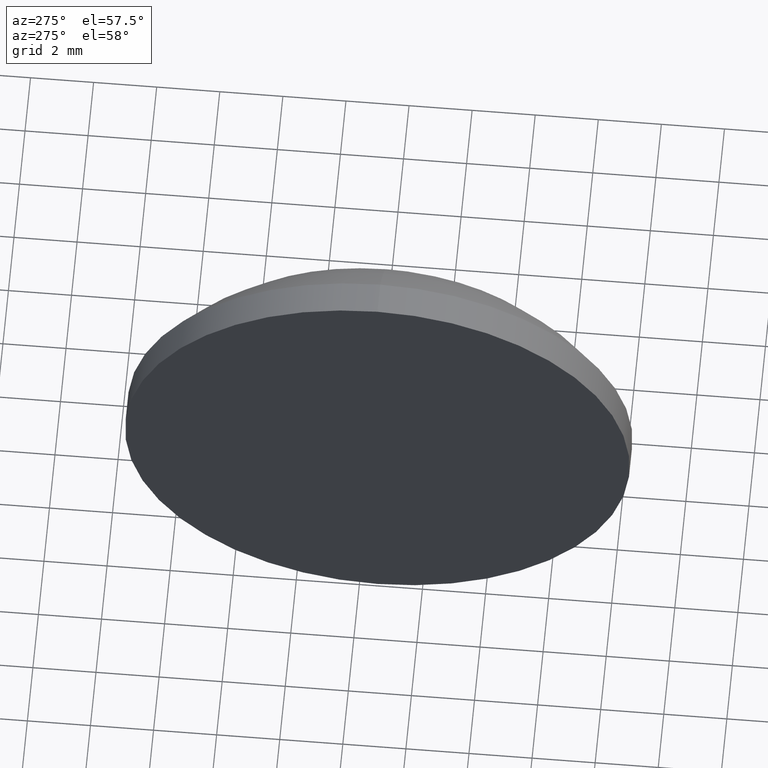
[diagram: clean part render]
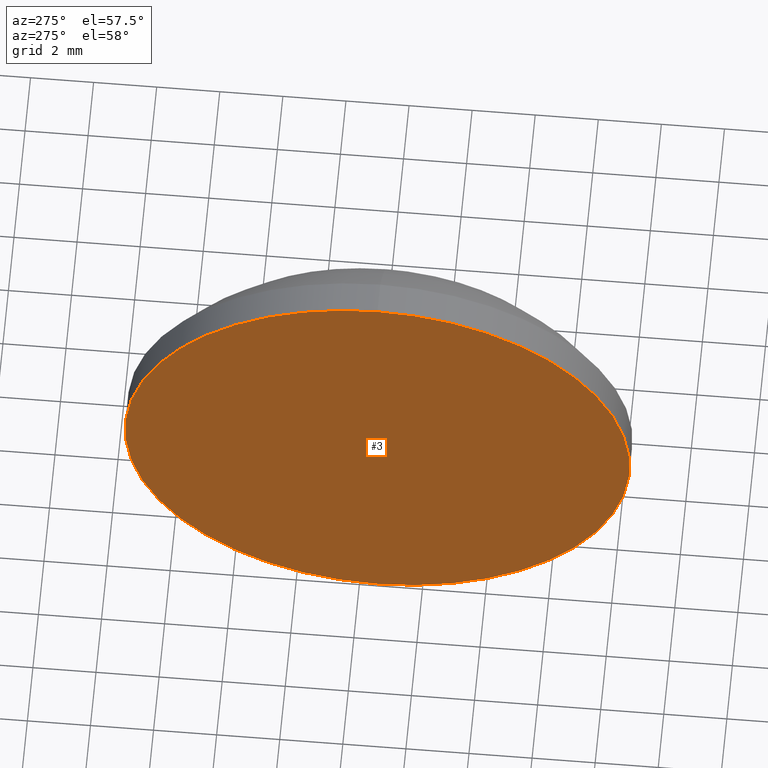
[diagram: same view with one face highlighted and labeled with its STEP entity id]
A machine part, auxiliary view. The second image highlights one B-rep face of the part: STEP entity #3.
In plain terms, the highlighted planar face has unit normal (1, 0, 0).
Its self-contained STEP definition (entity closure, byte-faithful):
#3 = ADVANCED_FACE ( 'NONE', ( #5 ), #85, .F. ) ;
#5 = FACE_OUTER_BOUND ( 'NONE', #80, .T. ) ;
#9 = CARTESIAN_POINT ( 'NONE',  ( 449.8505502683110500, 135.4163009679578000, 0.0000000000000000000 ) ) ;
#26 = ORIENTED_EDGE ( 'NONE', *, *, #159, .T. ) ;
#52 = DIRECTION ( 'NONE',  ( -1.000000000000000000, -0.0000000000000000000, -0.0000000000000000000 ) ) ;
#54 = AXIS2_PLACEMENT_3D ( 'NONE', #84, #108, #142 ) ;
#57 = EDGE_CURVE ( 'NONE', #135, #127, #65, .T. ) ;
#64 = AXIS2_PLACEMENT_3D ( 'NONE', #9, #110, #165 ) ;
#65 = CIRCLE ( 'NONE', #105, 8.000000000000007100 ) ;
#76 = CARTESIAN_POINT ( 'NONE',  ( 449.8505502683110500, 135.4163009679578000, 8.000000000000007100 ) ) ;
#80 = EDGE_LOOP ( 'NONE', ( #89, #26 ) ) ;
#84 = CARTESIAN_POINT ( 'NONE',  ( 449.8505502683110500, 135.4163009679578000, 0.0000000000000000000 ) ) ;
#85 = PLANE ( 'NONE',  #64 ) ;
#89 = ORIENTED_EDGE ( 'NONE', *, *, #57, .T. ) ;
#105 = AXIS2_PLACEMENT_3D ( 'NONE', #150, #52, #160 ) ;
#108 = DIRECTION ( 'NONE',  ( -1.000000000000000000, -0.0000000000000000000, -0.0000000000000000000 ) ) ;
#110 = DIRECTION ( 'NONE',  ( 1.000000000000000000, 0.0000000000000000000, 0.0000000000000000000 ) ) ;
#127 = VERTEX_POINT ( 'NONE', #132 ) ;
#128 = CIRCLE ( 'NONE', #54, 8.000000000000007100 ) ;
#132 = CARTESIAN_POINT ( 'NONE',  ( 449.8505502683110500, 135.4163009679578000, -8.000000000000007100 ) ) ;
#135 = VERTEX_POINT ( 'NONE', #76 ) ;
#142 = DIRECTION ( 'NONE',  ( 0.0000000000000000000, 0.0000000000000000000, 1.000000000000000000 ) ) ;
#150 = CARTESIAN_POINT ( 'NONE',  ( 449.8505502683110500, 135.4163009679578000, 0.0000000000000000000 ) ) ;
#159 = EDGE_CURVE ( 'NONE', #127, #135, #128, .T. ) ;
#160 = DIRECTION ( 'NONE',  ( 0.0000000000000000000, 0.0000000000000000000, 1.000000000000000000 ) ) ;
#165 = DIRECTION ( 'NONE',  ( 0.0000000000000000000, 0.0000000000000000000, -1.000000000000000000 ) ) ;